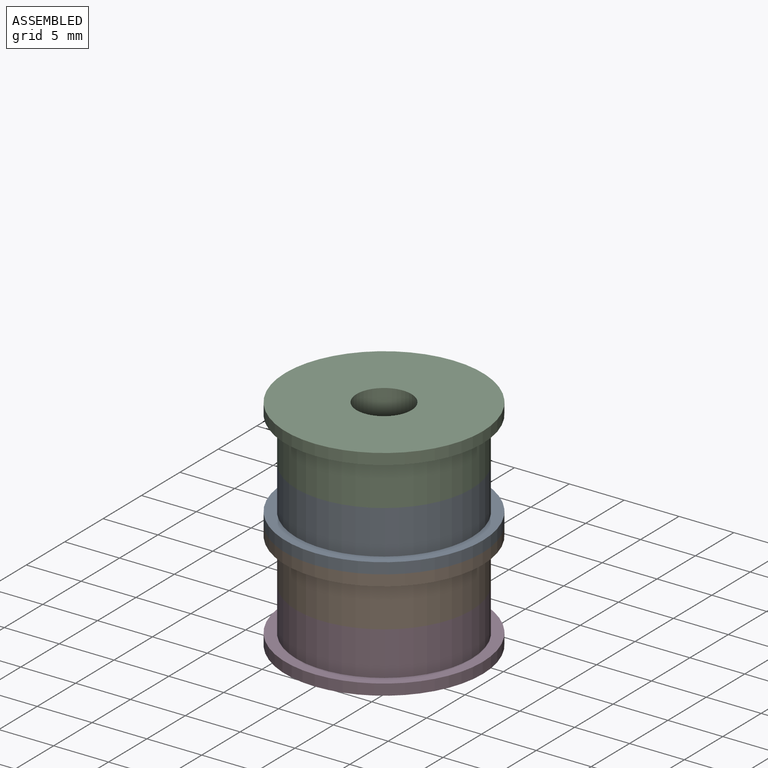
[diagram: assembled view]
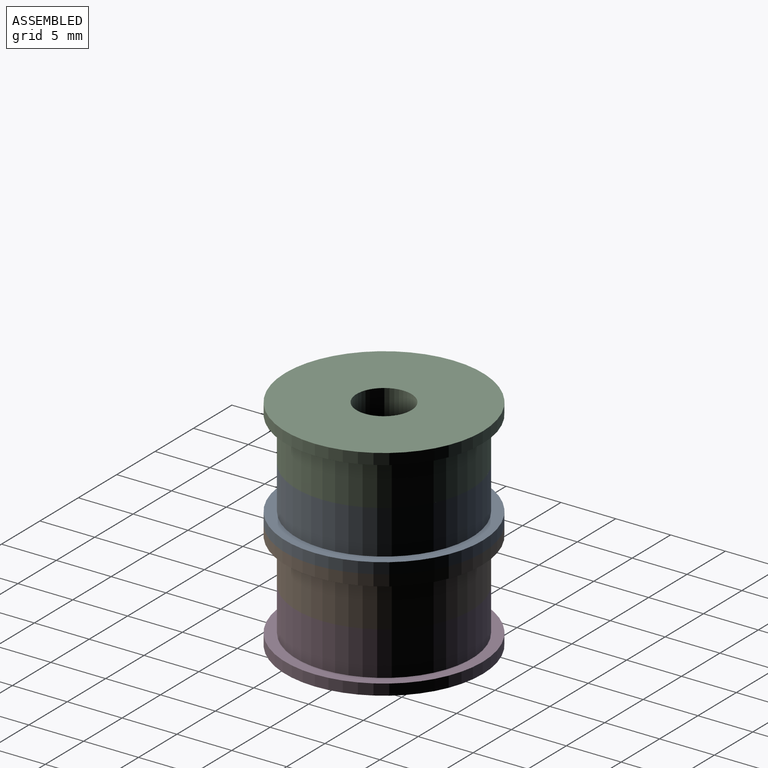
[diagram: assembled view, second angle]
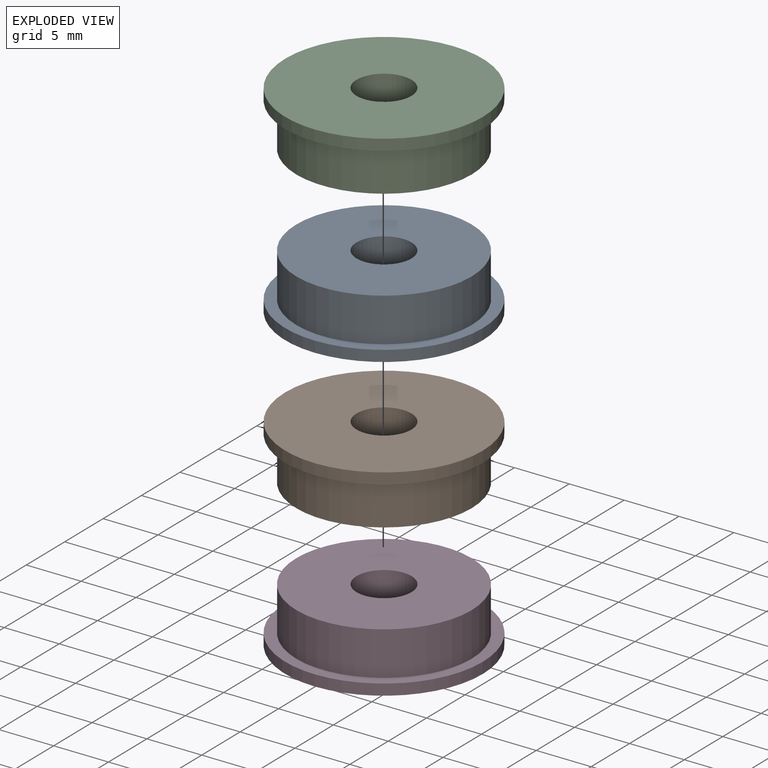
[diagram: exploded view]
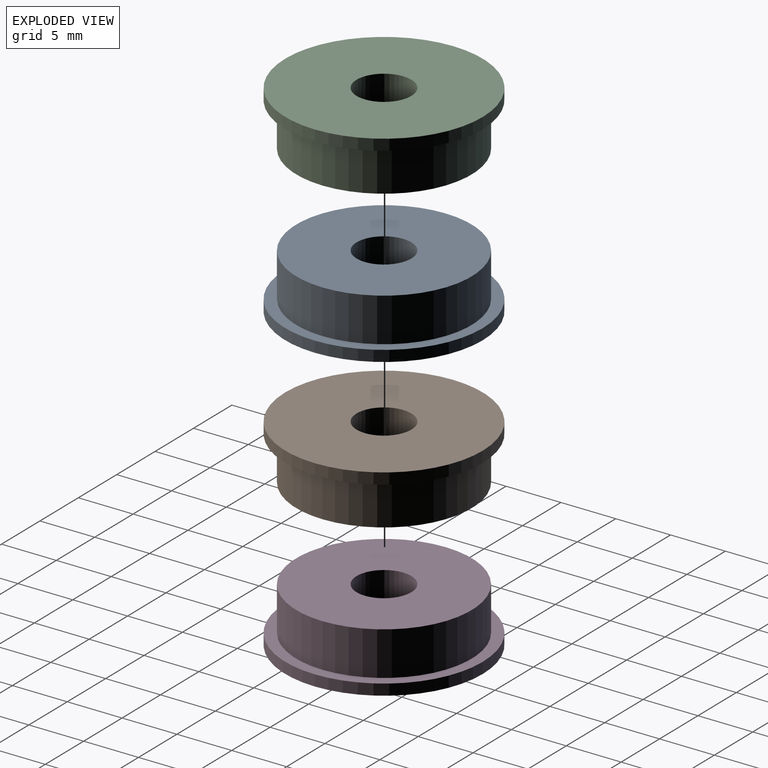
[diagram: exploded view, second angle]
ASSEMBLY  parts=4 mates=3
PART A: 6 faces, bbox 18x18x5 mm
  f0: cylinder r=2.5mm len=5mm, axis (0,0,-1), area 78.5mm2, adj f1,f5
  f1: plane 16x16mm, normal (0,0,-1), area 181.4mm2, adj f0,f2
  f2: cylinder r=8mm len=16mm, axis (0,0,-1), area 201.1mm2, adj f1,f3
  f3: plane 18x18mm, normal (0,0,-1), area 53.4mm2, adj f2,f4
  f4: cylinder r=9mm len=18mm, axis (0,0,-1), area 56.5mm2, adj f3,f5
  f5: plane 18x18mm, normal (0,0,1), area 234.8mm2, adj f0,f4
PART B: same geometry as A
PART C: same geometry as A
PART D: same geometry as A
PLACE A rot(axis=(1,0,0),180deg) t=(-0.84,-2.21,-5.08)mm
PLACE B t=(-0.84,-2.21,-15.08)mm
PLACE C t=(-0.84,-2.21,-5.08)mm
PLACE D rot(axis=(1,0,0),180deg) t=(-0.84,-2.21,-15.08)mm
MATE fastened D.f0 <-> B.f0  axis (0,0,1) through (-0.84,-2.21,-15.08)mm
MATE fastened A.f0 <-> C.f0  axis (0,0,1) through (-0.84,-2.21,-5.08)mm
MATE fastened A.f0 <-> B.f0  axis (0,0,1) through (-0.84,-2.21,-10.08)mm
